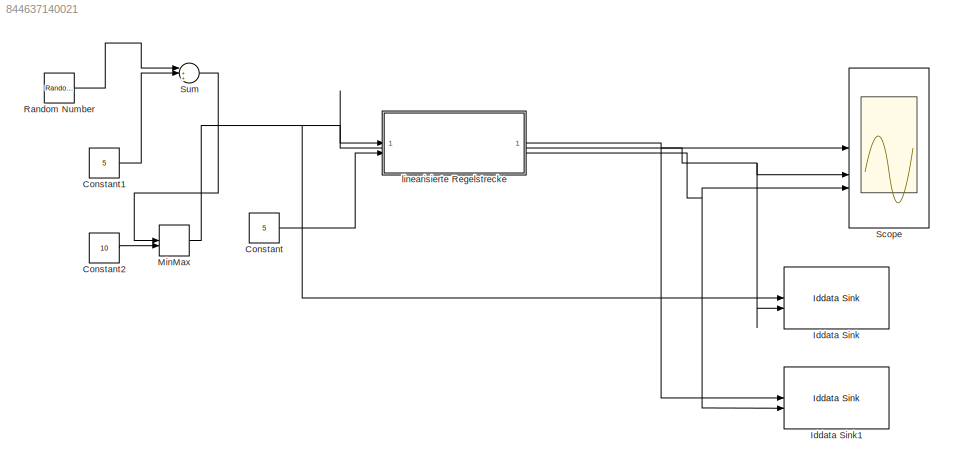
MODEL slx_844637140021
KIND model
CONFIG AbsTol = auto
CONFIG EnableMultiTasking = off
CONFIG FixedStep = auto
CONFIG MaxStep = auto
CONFIG MinStep = auto
CONFIG RelTol = 1e-3
CONFIG SampleTimeConstraint = Unconstrained
CONFIG SolverName = VariableStepAuto
CONFIG StartTime = 0.0
CONFIG StopTime = 20
BLOCK [Constant] Constant
  Value = 5
BLOCK [Constant] Constant1
  Value = 5
BLOCK [Constant] Constant2
  Value = 10
BLOCK [Reference] Iddata Sink  REF=slident/Iddata Sink  (lib defined in mdl_f7d4911ca73a)
  SourceBlock = slident/Iddata Sink
  SourceType = IDDATA Sink
BLOCK [Reference] Iddata Sink1  REF=slident/Iddata Sink  (lib defined in mdl_f7d4911ca73a)
  SourceBlock = slident/Iddata Sink
  SourceType = IDDATA Sink
BLOCK [MinMax] MinMax
  Inputs = 2
BLOCK [RandomNumber] Random Number
  SampleTime = 0.1
  Variance = 10
BLOCK [Scope] Scope
  Floating = off
  NumInputPorts = 3
  ScopeSpecificationString = Simulink.scopes.TimeScopeBlockCfg('CurrentConfiguration', extmgr.ConfigurationSet(extmgr.Configuration('Core','General UI',true),extmgr.Configuration('Core','Source UI',true),extmgr.Configuration('Sources','WiredSimulink',true),extmgr.Configuration('Visuals','Time Domain',true,'SerializedDisplays',{struct('MinYLimReal','-19.125','MaxYLimReal','172.125','YLabelReal','','MinYLimMag','0.00000','MaxYL...<+1856ch>
BLOCK [Sum] Sum
  Inputs = |+++
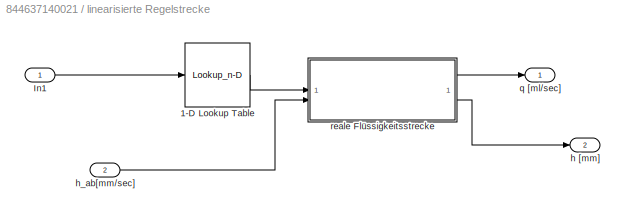
BLOCK [SubSystem] linearisierte Regelstrecke
BLOCK [Lookup_n-D] linearisierte Regelstrecke/1-D Lookup Table
  BreakpointsForDimension1 = [-11.6,-10.1,-9.0,-7.65,-6.15,-4.4,-2.65,-0.01,0.01,2.65,4.4,6.15,7.65,9.0,10.1,11.6]
  InputPortMap = u0
  InternalRulePriority = Speed
  NumberOfTableDimensions = 1
  RndMeth = Simplest
  Table = [-10,-9,-8,-7,-6,-5,-4,-3,3,4,5,6,7,8,9,10]
BLOCK [Inport] linearisierte Regelstrecke/In1
BLOCK [Outport] linearisierte Regelstrecke/h [mm]
  Port = 2
BLOCK [Inport] linearisierte Regelstrecke/h_ab[mm//sec]
  Port = 2
BLOCK [Outport] linearisierte Regelstrecke/q [ml//sec]
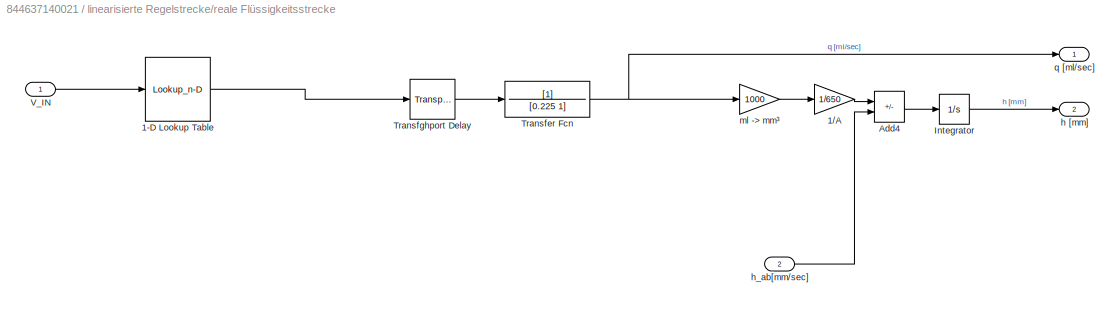
BLOCK [SubSystem] linearisierte Regelstrecke/reale Flüssigkeitsstrecke
BLOCK [Lookup_n-D] linearisierte Regelstrecke/reale Flüssigkeitsstrecke/1-D Lookup Table
  BreakpointsForDimension1 = [-10,-9,-8,-7,-6,-5,-4,-3,3,4,5,6,7,8,9,10]
  InputPortMap = u0
  InternalRulePriority = Speed
  NumberOfTableDimensions = 1
  RndMeth = Simplest
  Table = [-11.6,-10.1,-9.0,-7.65,-6.15,-4.4,-2.65,0,0,2.65,4.4,6.15,7.65,9.0,10.1,11.6]
BLOCK [Gain] linearisierte Regelstrecke/reale Flüssigkeitsstrecke/1//A
  Gain = 1/650
BLOCK [Sum] linearisierte Regelstrecke/reale Flüssigkeitsstrecke/Add4
  IconShape = rectangular
  Inputs = +-
BLOCK [Integrator] linearisierte Regelstrecke/reale Flüssigkeitsstrecke/Integrator
  InitialCondition = 70
  LimitOutput = on
  LowerSaturationLimit = 0
  UpperSaturationLimit = 153
BLOCK [TransferFcn] linearisierte Regelstrecke/reale Flüssigkeitsstrecke/Transfer Fcn
  Denominator = [0.225 1]
BLOCK [TransportDelay] linearisierte Regelstrecke/reale Flüssigkeitsstrecke/Transfghport Delay
  DelayTime = 0.25
BLOCK [Inport] linearisierte Regelstrecke/reale Flüssigkeitsstrecke/V_IN
BLOCK [Outport] linearisierte Regelstrecke/reale Flüssigkeitsstrecke/h [mm]
  Port = 2
BLOCK [Inport] linearisierte Regelstrecke/reale Flüssigkeitsstrecke/h_ab[mm//sec]
  Port = 2
BLOCK [Gain] linearisierte Regelstrecke/reale Flüssigkeitsstrecke/ml -> mm³
  Gain = 1000
BLOCK [Outport] linearisierte Regelstrecke/reale Flüssigkeitsstrecke/q [ml//sec]
LINE Constant1:1 -> Sum:2
LINE Constant2:1 -> MinMax:2
LINE Constant:1 -> linearisierte Regelstrecke:2
NET MinMax:1 -> Iddata Sink:1, Scope:1, linearisierte Regelstrecke:1
LINE Random Number:1 -> Sum:1
LINE Sum:1 -> MinMax:1
LINE linearisierte Regelstrecke/1-D Lookup Table:1 -> linearisierte Regelstrecke/reale Flüssigkeitsstrecke:1
LINE linearisierte Regelstrecke/In1:1 -> linearisierte Regelstrecke/1-D Lookup Table:1
LINE linearisierte Regelstrecke/h_ab[mm//sec]:1 -> linearisierte Regelstrecke/reale Flüssigkeitsstrecke:2
LINE linearisierte Regelstrecke/reale Flüssigkeitsstrecke/1-D Lookup Table:1 -> linearisierte Regelstrecke/reale Flüssigkeitsstrecke/Transfghport Delay:1
LINE linearisierte Regelstrecke/reale Flüssigkeitsstrecke/1//A:1 -> linearisierte Regelstrecke/reale Flüssigkeitsstrecke/Add4:1
LINE linearisierte Regelstrecke/reale Flüssigkeitsstrecke/Add4:1 -> linearisierte Regelstrecke/reale Flüssigkeitsstrecke/Integrator:1
LINE linearisierte Regelstrecke/reale Flüssigkeitsstrecke/Integrator:1 -> linearisierte Regelstrecke/reale Flüssigkeitsstrecke/h [mm]:1
NET linearisierte Regelstrecke/reale Flüssigkeitsstrecke/Transfer Fcn:1 -> linearisierte Regelstrecke/reale Flüssigkeitsstrecke/ml -> mm³:1, linearisierte Regelstrecke/reale Flüssigkeitsstrecke/q [ml//sec]:1
LINE linearisierte Regelstrecke/reale Flüssigkeitsstrecke/Transfghport Delay:1 -> linearisierte Regelstrecke/reale Flüssigkeitsstrecke/Transfer Fcn:1
LINE linearisierte Regelstrecke/reale Flüssigkeitsstrecke/V_IN:1 -> linearisierte Regelstrecke/reale Flüssigkeitsstrecke/1-D Lookup Table:1
LINE linearisierte Regelstrecke/reale Flüssigkeitsstrecke/h_ab[mm//sec]:1 -> linearisierte Regelstrecke/reale Flüssigkeitsstrecke/Add4:2
LINE linearisierte Regelstrecke/reale Flüssigkeitsstrecke/ml -> mm³:1 -> linearisierte Regelstrecke/reale Flüssigkeitsstrecke/1//A:1
LINE linearisierte Regelstrecke/reale Flüssigkeitsstrecke:1 -> linearisierte Regelstrecke/q [ml//sec]:1
LINE linearisierte Regelstrecke/reale Flüssigkeitsstrecke:2 -> linearisierte Regelstrecke/h [mm]:1
NET linearisierte Regelstrecke:1 -> Iddata Sink1:1, Iddata Sink:2, Scope:2
NET linearisierte Regelstrecke:2 -> Iddata Sink1:2, Scope:3
note: NET lines group one-source signal fan-out (src -> all destinations, sorted); 1:1 wires keep LINE
